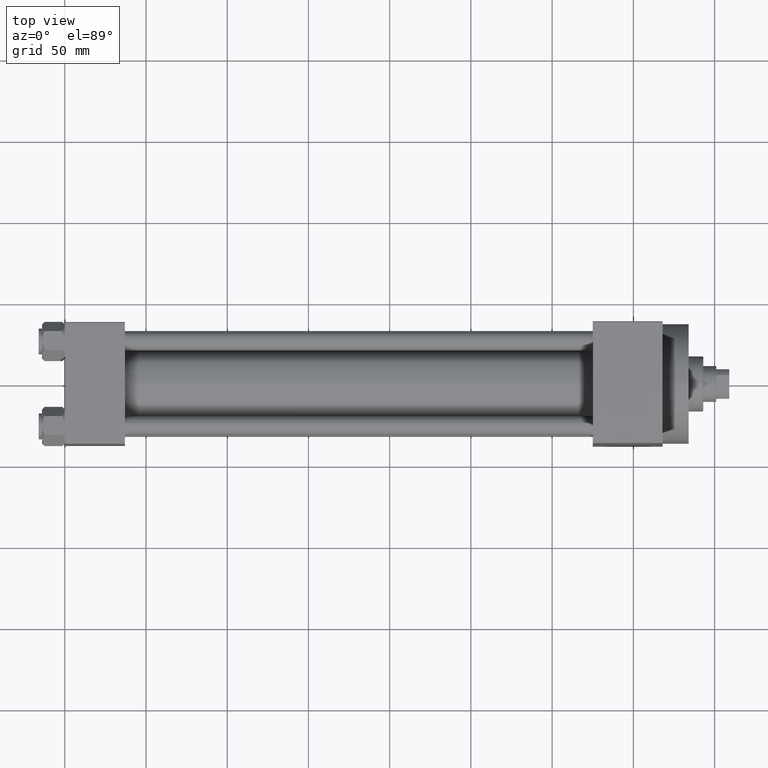
[diagram: clean part render]
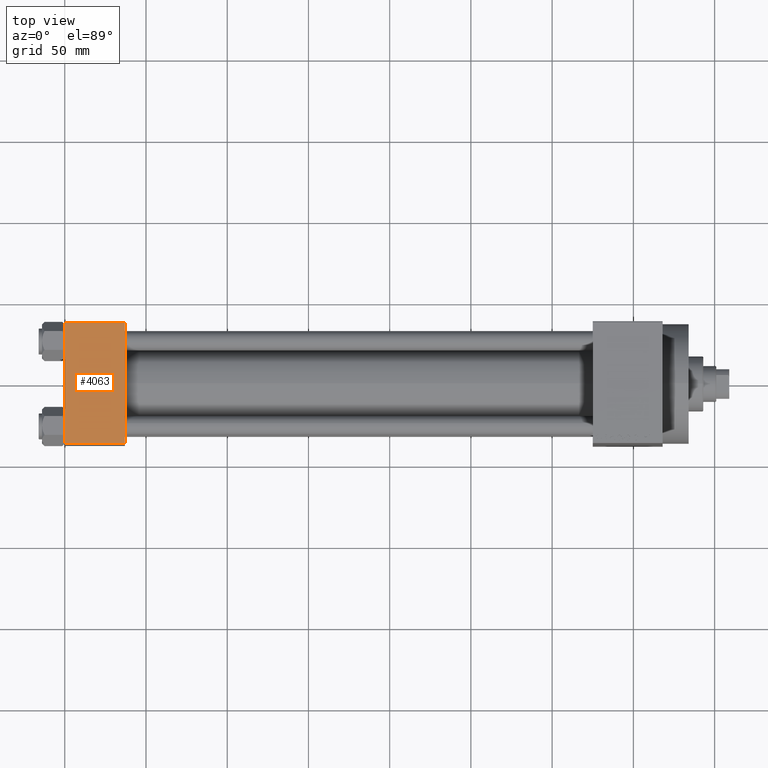
[diagram: same view with one face highlighted and labeled with its STEP entity id]
A machine part, top view. The second image highlights one B-rep face of the part: STEP entity #4063.
In plain terms, the highlighted planar face has unit normal (0, 0, -1).
Its self-contained STEP definition (entity closure, byte-faithful):
#4063 = ADVANCED_FACE ( 'NONE', ( #31948 ), #20930, .F. ) ;
#6685 = VERTEX_POINT ( 'NONE', #24526 ) ;
#6784 = DIRECTION ( 'NONE',  ( 0.000000000000000000, 9.251858538542971581E-17, -1.000000000000000000 ) ) ;
#8720 = LINE ( 'NONE', #20454, #11130 ) ;
#9327 = VECTOR ( 'NONE', #33094, 1000.000000000000000 ) ;
#11130 = VECTOR ( 'NONE', #38666, 1000.000000000000000 ) ;
#16204 = VECTOR ( 'NONE', #23860, 1000.000000000000000 ) ;
#19269 = LINE ( 'NONE', #33880, #28806 ) ;
#19682 = ORIENTED_EDGE ( 'NONE', *, *, #29651, .T. ) ;
#20454 = CARTESIAN_POINT ( 'NONE',  ( 37.00000000000000000, -37.00000000000000711, 37.49999999999999289 ) ) ;
#20784 = EDGE_CURVE ( 'NONE', #23686, #46315, #35588, .T. ) ;
#20802 = VERTEX_POINT ( 'NONE', #28150 ) ;
#20930 = PLANE ( 'NONE',  #47177 ) ;
#22304 = CARTESIAN_POINT ( 'NONE',  ( 0.000000000000000000, 37.49999999999999289, 37.50000000000000000 ) ) ;
#23686 = VERTEX_POINT ( 'NONE', #37228 ) ;
#23860 = DIRECTION ( 'NONE',  ( -1.000000000000000000, 0.000000000000000000, 0.000000000000000000 ) ) ;
#24526 = CARTESIAN_POINT ( 'NONE',  ( 37.00000000000000000, -37.00000000000000711, 37.49999999999999289 ) ) ;
#26691 = DIRECTION ( 'NONE',  ( 0.000000000000000000, -1.000000000000000000, -9.251858538542971581E-17 ) ) ;
#28150 = CARTESIAN_POINT ( 'NONE',  ( 0.000000000000000000, -37.00000000000000711, 37.49999999999999289 ) ) ;
#28806 = VECTOR ( 'NONE', #26691, 1000.000000000000000 ) ;
#29651 = EDGE_CURVE ( 'NONE', #46315, #20802, #40760, .T. ) ;
#31948 = FACE_OUTER_BOUND ( 'NONE', #42658, .T. ) ;
#32663 = DIRECTION ( 'NONE',  ( 0.000000000000000000, 1.000000000000000000, 9.251858538542971581E-17 ) ) ;
#33094 = DIRECTION ( 'NONE',  ( 0.000000000000000000, -1.000000000000000000, -9.251858538542971581E-17 ) ) ;
#33535 = CARTESIAN_POINT ( 'NONE',  ( 0.000000000000000000, 36.99999999999999289, 37.50000000000000000 ) ) ;
#33880 = CARTESIAN_POINT ( 'NONE',  ( 37.00000000000000000, 37.49999999999999289, 37.50000000000000000 ) ) ;
#34740 = ORIENTED_EDGE ( 'NONE', *, *, #40573, .F. ) ;
#34875 = CARTESIAN_POINT ( 'NONE',  ( 0.000000000000000000, 36.99999999999999289, 37.50000000000000000 ) ) ;
#35588 = LINE ( 'NONE', #34875, #16204 ) ;
#36113 = ORIENTED_EDGE ( 'NONE', *, *, #20784, .T. ) ;
#37228 = CARTESIAN_POINT ( 'NONE',  ( 37.00000000000000000, 36.99999999999999289, 37.50000000000000000 ) ) ;
#38616 = ORIENTED_EDGE ( 'NONE', *, *, #42038, .T. ) ;
#38666 = DIRECTION ( 'NONE',  ( 1.000000000000000000, 0.000000000000000000, 0.000000000000000000 ) ) ;
#40573 = EDGE_CURVE ( 'NONE', #23686, #6685, #19269, .T. ) ;
#40760 = LINE ( 'NONE', #22304, #9327 ) ;
#42038 = EDGE_CURVE ( 'NONE', #20802, #6685, #8720, .T. ) ;
#42658 = EDGE_LOOP ( 'NONE', ( #19682, #38616, #34740, #36113 ) ) ;
#46315 = VERTEX_POINT ( 'NONE', #33535 ) ;
#47059 = CARTESIAN_POINT ( 'NONE',  ( 37.00000000000000000, 37.49999999999999289, 37.50000000000000000 ) ) ;
#47177 = AXIS2_PLACEMENT_3D ( 'NONE', #47059, #6784, #32663 ) ;